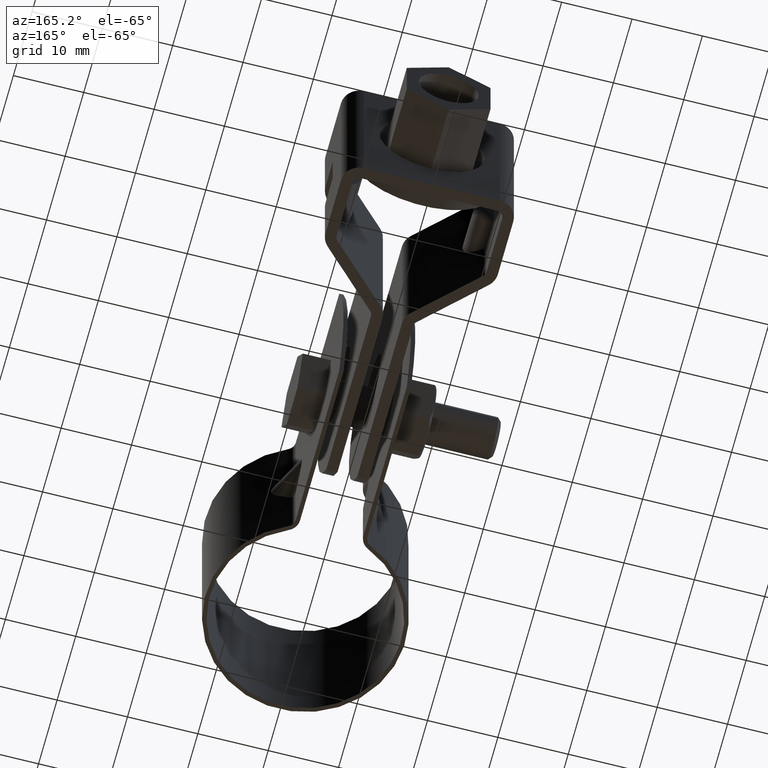
[diagram: clean part render]
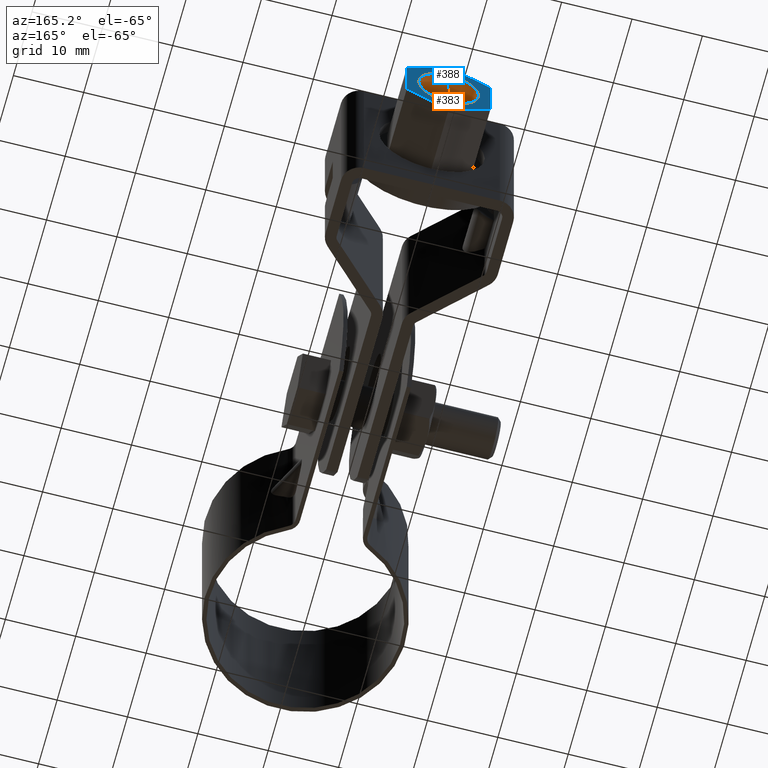
[diagram: same view with the hole feature highlighted: cylindrical wall and planar end face, labeled with their STEP entity ids]
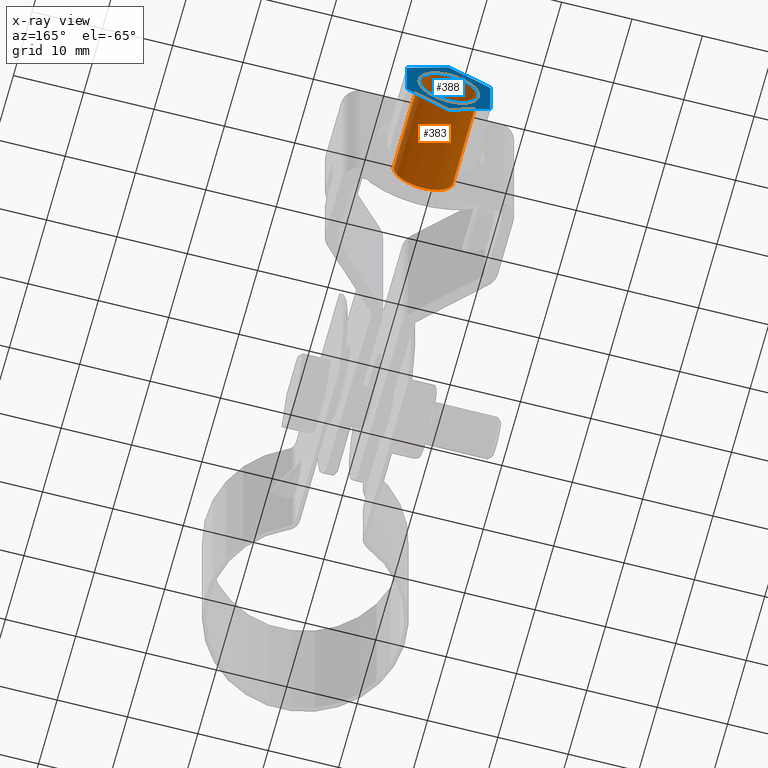
[diagram: x-ray of the same camera — body ghosted, the hole faces saturated]
A machine part, auxiliary view. The highlighted faces form one hole feature of diameter 8.5 mm: the cylindrical wall (entity #383, orange) and its adjacent planar end face (entity #388, blue) — they share a circular edge in the B-rep.
The next image is the same camera in x-ray (body ghosted, the hole faces saturated) — the bore reads through the body.
Wall:
#383 = ADVANCED_FACE( '', ( #647, #648 ), #649, .F. );
#647 = FACE_OUTER_BOUND( '', #919, .T. );
#648 = FACE_OUTER_BOUND( '', #920, .T. );
#649 = CYLINDRICAL_SURFACE( '', #921, 4.25000000000000 );
#919 = EDGE_LOOP( '', ( #1893 ) );
#920 = EDGE_LOOP( '', ( #1894 ) );
#921 = AXIS2_PLACEMENT_3D( '', #1895, #1896, #1897 );
#1893 = ORIENTED_EDGE( '', *, *, #2245, .F. );
#1894 = ORIENTED_EDGE( '', *, *, #2243, .F. );
#1895 = CARTESIAN_POINT( '', ( 3.60217540672601E-009, 59.2339384472058, 1.33099443966334E-006 ) );
#1896 = DIRECTION( '', ( -1.39877502405819E-011, -1.00000000000000, -9.98350074832281E-009 ) );
#1897 = DIRECTION( '', ( -1.00000000000000, 1.39877500531956E-011, 1.87695987422818E-011 ) );
#2243 = EDGE_CURVE( '', #2770, #2770, #2771, .T. );
#2245 = EDGE_CURVE( '', #2774, #2774, #2775, .T. );
#2770 = VERTEX_POINT( '', #3655 );
#2771 = CIRCLE( '', #3656, 4.25000000000000 );
#2774 = VERTEX_POINT( '', #3659 );
#2775 = CIRCLE( '', #3660, 4.25000000000000 );
#3655 = CARTESIAN_POINT( '', ( -4.24999999633838, 63.4839384472973, 1.37350409092820E-006 ) );
#3656 = AXIS2_PLACEMENT_3D( '', #4182, #4183, #4184 );
#3659 = CARTESIAN_POINT( '', ( -4.24999999614815, 77.0839384472973, 1.50927970248762E-006 ) );
#3660 = AXIS2_PLACEMENT_3D( '', #4188, #4189, #4190 );
#4182 = CARTESIAN_POINT( '', ( 3.66162334524894E-009, 63.4839384472379, 1.37342431871801E-006 ) );
#4183 = DIRECTION( '', ( 1.39877502405819E-011, 1.00000000000000, 9.98350074832281E-009 ) );
#4184 = DIRECTION( '', ( -1.00000000000000, 1.39877500531923E-011, 1.87699318091892E-011 ) );
#4188 = CARTESIAN_POINT( '', ( 3.85185674852085E-009, 77.0839384472379, 1.50919993169296E-006 ) );
#4189 = DIRECTION( '', ( -1.39877502405819E-011, -1.00000000000000, -9.98350074832281E-009 ) );
#4190 = DIRECTION( '', ( -1.00000000000000, 1.39877500531956E-011, 1.87695987422818E-011 ) );
End face:
#388 = ADVANCED_FACE( '', ( #659, #660 ), #661, .T. );
#659 = FACE_BOUND( '', #931, .T. );
#660 = FACE_OUTER_BOUND( '', #932, .T. );
#661 = PLANE( '', #933 );
#931 = EDGE_LOOP( '', ( #1924 ) );
#932 = EDGE_LOOP( '', ( #1925, #1926, #1927, #1928, #1929, #1930 ) );
#933 = AXIS2_PLACEMENT_3D( '', #1931, #1932, #1933 );
#1924 = ORIENTED_EDGE( '', *, *, #2245, .T. );
#1925 = ORIENTED_EDGE( '', *, *, #2231, .T. );
#1926 = ORIENTED_EDGE( '', *, *, #2240, .T. );
#1927 = ORIENTED_EDGE( '', *, *, #2242, .T. );
#1928 = ORIENTED_EDGE( '', *, *, #2247, .T. );
#1929 = ORIENTED_EDGE( '', *, *, #2249, .T. );
#1930 = ORIENTED_EDGE( '', *, *, #2250, .T. );
#1931 = CARTESIAN_POINT( '', ( -5.94999999608367, 77.0839384130255, 3.43523561098989 ) );
#1932 = DIRECTION( '', ( 1.39877502405824E-011, 1.00000000000000, 9.98350074832280E-009 ) );
#1933 = DIRECTION( '', ( -0.499999999983745, -8.63897139172213E-009, 0.866025403793824 ) );
#2231 = EDGE_CURVE( '', #2750, #2748, #2751, .T. );
#2240 = EDGE_CURVE( '', #2748, #2764, #2766, .T. );
#2242 = EDGE_CURVE( '', #2764, #2767, #2769, .T. );
#2245 = EDGE_CURVE( '', #2774, #2774, #2775, .T. );
#2247 = EDGE_CURVE( '', #2767, #2776, #2778, .T. );
#2249 = EDGE_CURVE( '', #2776, #2779, #2781, .T. );
#2250 = EDGE_CURVE( '', #2779, #2750, #2782, .T. );
#2748 = VERTEX_POINT( '', #3621 );
#2750 = VERTEX_POINT( '', #3624 );
#2751 = LINE( '', #3625, #3626 );
#2764 = VERTEX_POINT( '', #3645 );
#2766 = LINE( '', #3648, #3649 );
#2767 = VERTEX_POINT( '', #3650 );
#2769 = LINE( '', #3653, #3654 );
#2774 = VERTEX_POINT( '', #3659 );
#2775 = CIRCLE( '', #3660, 4.25000000000000 );
#2776 = VERTEX_POINT( '', #3661 );
#2778 = LINE( '', #3664, #3665 );
#2779 = VERTEX_POINT( '', #3666 );
#2781 = LINE( '', #3669, #3670 );
#2782 = LINE( '', #3671, #3672 );
#3621 = CARTESIAN_POINT( '', ( -5.94999999608367, 77.0839384130255, 3.43523561098989 ) );
#3624 = CARTESIAN_POINT( '', ( -5.94999999621263, 77.0839384816168, -3.43523259236667 ) );
#3625 = CARTESIAN_POINT( '', ( -5.94999999621262, 77.0839384816168, -3.43523259236667 ) );
#3626 = VECTOR( '', #4168, 1000.00000000000 );
#3645 = CARTESIAN_POINT( '', ( 3.98081193146953E-009, 77.0839383786466, 6.87046971255648 ) );
#3648 = CARTESIAN_POINT( '', ( -5.94999999608367, 77.0839384130255, 3.43523561098989 ) );
#3649 = VECTOR( '', #4179, 1000.00000000000 );
#3650 = CARTESIAN_POINT( '', ( 5.95000000391633, 77.0839384128590, 3.43523561076653 ) );
#3653 = CARTESIAN_POINT( '', ( 3.98081019674606E-009, 77.0839383786466, 6.87046971255648 ) );
#3654 = VECTOR( '', #4181, 1000.00000000000 );
#3659 = CARTESIAN_POINT( '', ( -4.24999999614815, 77.0839384472973, 1.50927970248762E-006 ) );
#3660 = AXIS2_PLACEMENT_3D( '', #4188, #4189, #4190 );
#3661 = CARTESIAN_POINT( '', ( 5.95000000378738, 77.0839384814503, -3.43523259259002 ) );
#3664 = CARTESIAN_POINT( '', ( 5.95000000391634, 77.0839384128590, 3.43523561076653 ) );
#3665 = VECTOR( '', #4192, 1000.00000000000 );
#3666 = CARTESIAN_POINT( '', ( 3.72290243293390E-009, 77.0839385158292, -6.87046669415663 ) );
#3669 = CARTESIAN_POINT( '', ( 5.95000000378738, 77.0839384814503, -3.43523259259003 ) );
#3670 = VECTOR( '', #4194, 1000.00000000000 );
#3671 = CARTESIAN_POINT( '', ( 3.72289636140174E-009, 77.0839385158292, -6.87046669415663 ) );
#3672 = VECTOR( '', #4195, 1000.00000000000 );
#4168 = DIRECTION( '', ( 1.87695430914839E-011, -9.98350074832307E-009, 1.00000000000000 ) );
#4179 = DIRECTION( '', ( 0.866025403793824, -5.00386412104938E-009, 0.499999999983745 ) );
#4181 = DIRECTION( '', ( 0.866025403775054, 4.97963662727368E-009, -0.500000000016255 ) );
#4188 = CARTESIAN_POINT( '', ( 3.85185674852085E-009, 77.0839384472379, 1.50919993169296E-006 ) );
#4189 = DIRECTION( '', ( -1.39877502405819E-011, -1.00000000000000, -9.98350074832281E-009 ) );
#4190 = DIRECTION( '', ( -1.00000000000000, 1.39877500531956E-011, 1.87695987422818E-011 ) );
#4192 = DIRECTION( '', ( -1.87699871806937E-011, 9.98350074832307E-009, -1.00000000000000 ) );
#4194 = DIRECTION( '', ( -0.866025403793824, 5.00386412104938E-009, -0.499999999983745 ) );
#4195 = DIRECTION( '', ( -0.866025403775054, -4.97963662727368E-009, 0.500000000016255 ) );